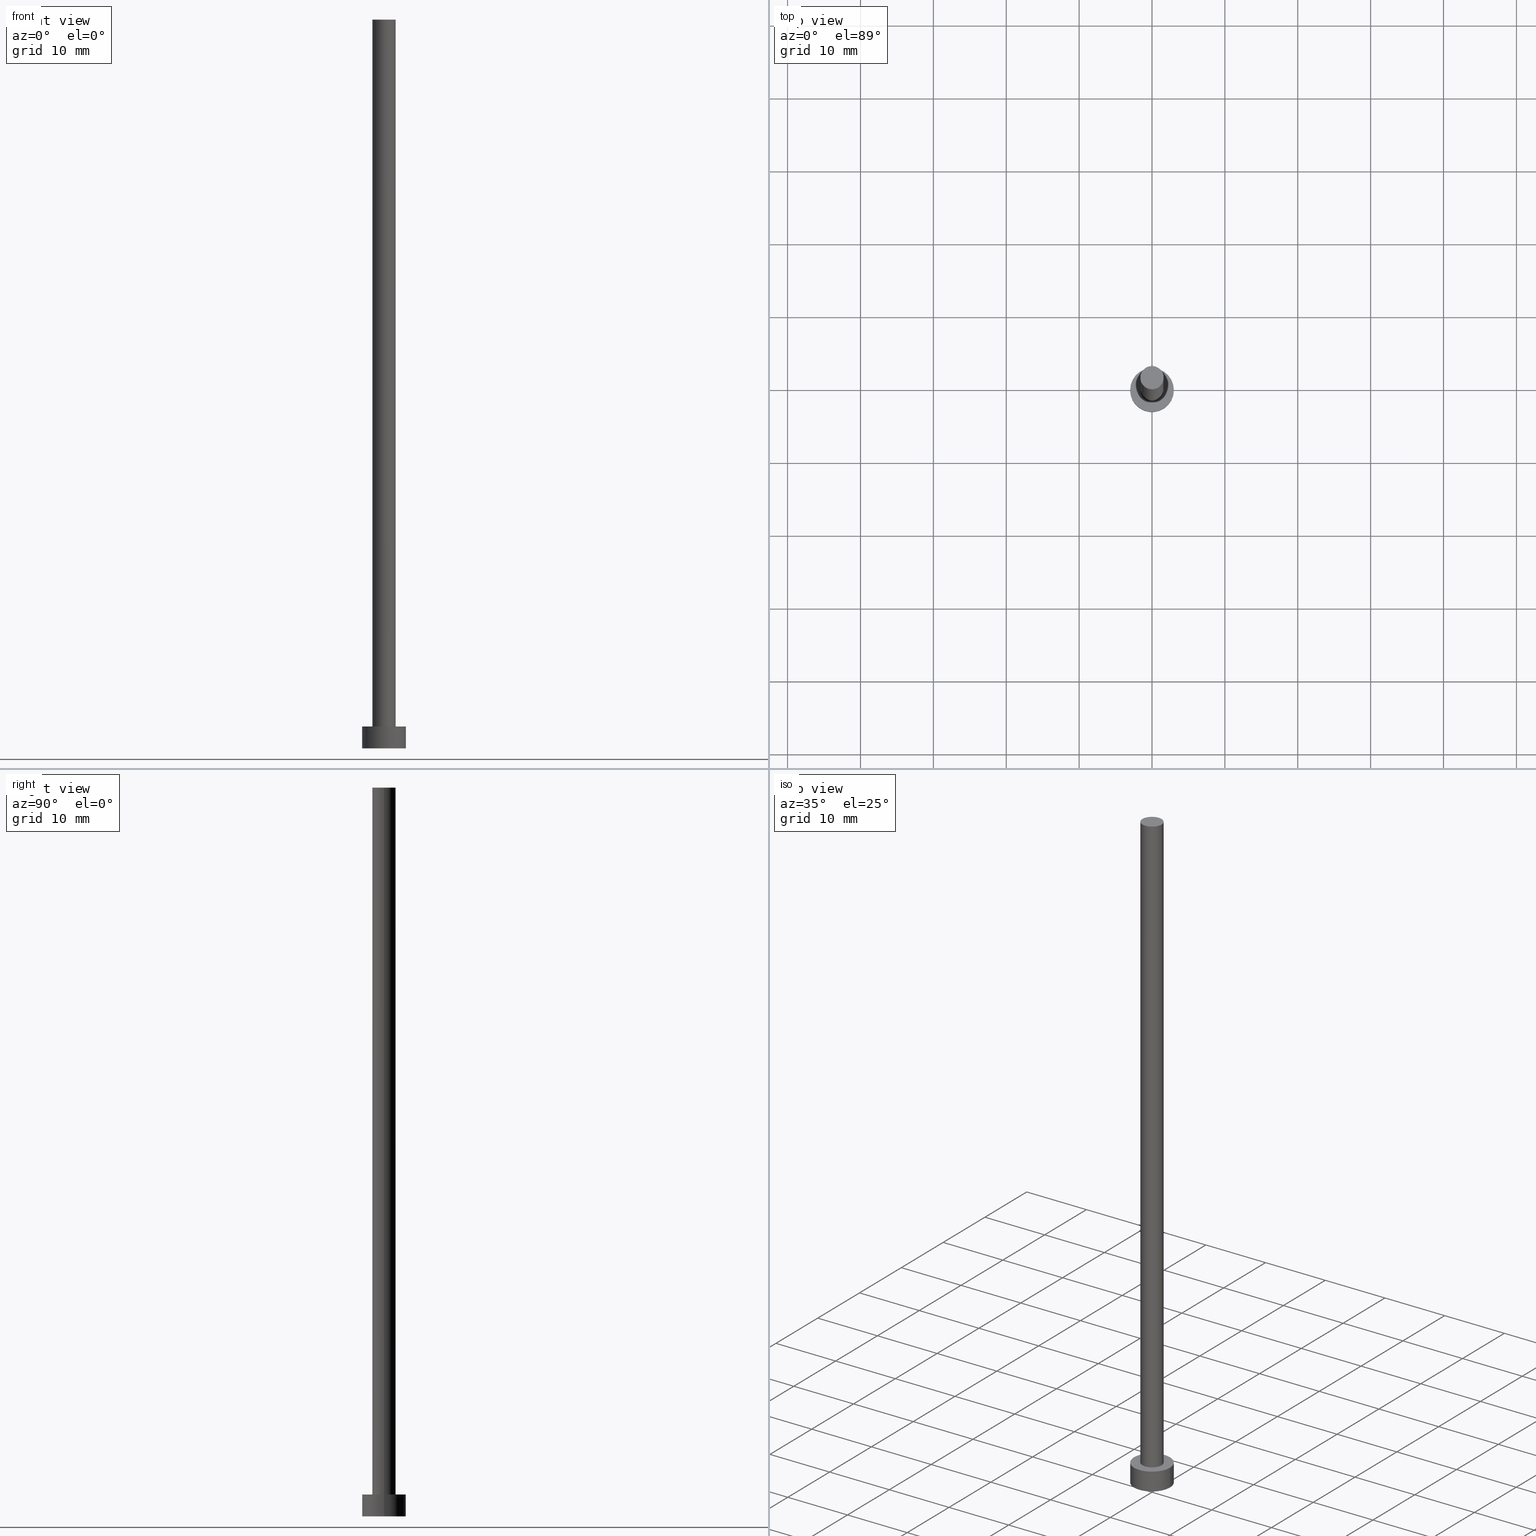
[diagram: canonical four-view strip — front | top / right | iso, engineering-drawing reading convention]
A machine part, canonical four-view strip (front | top / right | iso — engineering-drawing reading convention). The complete STEP part file that produces these views, byte-faithful:
ISO-10303-21;
HEADER;
FILE_DESCRIPTION (( 'STEP AP203' ),
    '1' );
FILE_NAME ('02a2.STEP',
    '2023-02-13T15:36:31',
    ( '' ),
    ( '' ),
    'SwSTEP 2.0',
    'SolidWorks 2019',
    '' );
FILE_SCHEMA (( 'CONFIG_CONTROL_DESIGN' ));
ENDSEC;

DATA;
#1 = EDGE_CURVE ( 'NONE', #93, #252, #37, .T. ) ;
#2 = SHAPE_DEFINITION_REPRESENTATION ( #193, #200 ) ;
#3 = AXIS2_PLACEMENT_3D ( 'NONE', #116, #62, #243 ) ;
#4 = FACE_OUTER_BOUND ( 'NONE', #247, .T. ) ;
#5 = DIRECTION ( 'NONE',  ( 1.000000000000000000, 0.000000000000000000, -0.000000000000000000 ) ) ;
#6 = MANIFOLD_SOLID_BREP ( 'P�idat vysunut�m3', #237 ) ;
#7 = DIRECTION ( 'NONE',  ( 1.000000000000000000, 0.000000000000000000, 0.000000000000000000 ) ) ;
#8 = DIRECTION ( 'NONE',  ( -0.000000000000000000, -0.000000000000000000, -1.000000000000000000 ) ) ;
#9 = PERSON_AND_ORGANIZATION ( #230, #229 ) ;
#10 = CARTESIAN_POINT ( 'NONE',  ( 1.600000000000000089, 1.959434878635764737E-16, 100.0000000000000000 ) ) ;
#11 = ADVANCED_FACE ( 'NONE', ( #60 ), #81, .F. ) ;
#12 = LOCAL_TIME ( 16, 36, 31.00000000000000000, #52 ) ;
#13 = DIRECTION ( 'NONE',  ( 1.000000000000000000, 0.000000000000000000, 0.000000000000000000 ) ) ;
#14 = ORIENTED_EDGE ( 'NONE', *, *, #41, .F. ) ;
#15 = ORIENTED_EDGE ( 'NONE', *, *, #1, .T. ) ;
#16 = CC_DESIGN_DATE_AND_TIME_ASSIGNMENT ( #210, #112, ( #136 ) ) ;
#17 = ADVANCED_FACE ( 'NONE', ( #26 ), #134, .T. ) ;
#18 = PERSON_AND_ORGANIZATION ( #230, #229 ) ;
#19 = AXIS2_PLACEMENT_3D ( 'NONE', #119, #221, #202 ) ;
#20 = VERTEX_POINT ( 'NONE', #118 ) ;
#21 = APPLICATION_CONTEXT ( 'configuration controlled 3d designs of mechanical parts and assemblies' ) ;
#22 = FACE_BOUND ( 'NONE', #91, .T. ) ;
#23 = DIRECTION ( 'NONE',  ( 0.000000000000000000, 0.000000000000000000, 1.000000000000000000 ) ) ;
#24 = VERTEX_POINT ( 'NONE', #218 ) ;
#25 = DIRECTION ( 'NONE',  ( 1.000000000000000000, 0.000000000000000000, 0.000000000000000000 ) ) ;
#26 = FACE_OUTER_BOUND ( 'NONE', #236, .T. ) ;
#27 = CARTESIAN_POINT ( 'NONE',  ( 0.000000000000000000, 0.000000000000000000, 100.0000000000000000 ) ) ;
#28 = DIRECTION ( 'NONE',  ( 1.000000000000000000, 0.000000000000000000, 0.000000000000000000 ) ) ;
#29 = CALENDAR_DATE ( 2023, 13, 2 ) ;
#30 = ORIENTED_EDGE ( 'NONE', *, *, #179, .T. ) ;
#31 = EDGE_CURVE ( 'NONE', #226, #231, #120, .T. ) ;
#32 = APPROVAL_STATUS ( 'not_yet_approved' ) ;
#33 = ORIENTED_EDGE ( 'NONE', *, *, #82, .T. ) ;
#34 = APPROVAL_PERSON_ORGANIZATION ( #9, #103, #92 ) ;
#35 = PERSON_AND_ORGANIZATION ( #230, #229 ) ;
#36 = CC_DESIGN_PERSON_AND_ORGANIZATION_ASSIGNMENT ( #105, #225, ( #216 ) ) ;
#37 = LINE ( 'NONE', #177, #135 ) ;
#38 = CARTESIAN_POINT ( 'NONE',  ( 0.000000000000000000, 0.000000000000000000, 0.000000000000000000 ) ) ;
#39 = CARTESIAN_POINT ( 'NONE',  ( 1.600000000000000089, 1.959434878635764737E-16, 100.0000000000000000 ) ) ;
#40 = PLANE ( 'NONE',  #153 ) ;
#41 = EDGE_CURVE ( 'NONE', #252, #149, #111, .T. ) ;
#42 = ORIENTED_EDGE ( 'NONE', *, *, #248, .T. ) ;
#43 = AXIS2_PLACEMENT_3D ( 'NONE', #154, #84, #7 ) ;
#44 =( LENGTH_UNIT ( ) NAMED_UNIT ( * ) SI_UNIT ( .MILLI., .METRE. ) );
#45 = VECTOR ( 'NONE', #106, 1000.000000000000000 ) ;
#46 = DIRECTION ( 'NONE',  ( 0.000000000000000000, 0.000000000000000000, 1.000000000000000000 ) ) ;
#47 = DATE_AND_TIME ( #29, #239 ) ;
#48 = ORIENTED_EDGE ( 'NONE', *, *, #185, .T. ) ;
#49 = PERSON_AND_ORGANIZATION ( #230, #229 ) ;
#50 = ORIENTED_EDGE ( 'NONE', *, *, #217, .F. ) ;
#51 = APPROVAL_PERSON_ORGANIZATION ( #209, #99, #191 ) ;
#52 = COORDINATED_UNIVERSAL_TIME_OFFSET ( 1, 0, .AHEAD. ) ;
#53 = PERSON_AND_ORGANIZATION_ROLE ( 'design_supplier' ) ;
#54 = ORIENTED_EDGE ( 'NONE', *, *, #82, .F. ) ;
#55 = CC_DESIGN_PERSON_AND_ORGANIZATION_ASSIGNMENT ( #171, #166, ( #242 ) ) ;
#56 = EDGE_LOOP ( 'NONE', ( #146, #96, #15, #71 ) ) ;
#57 = DIRECTION ( 'NONE',  ( 1.000000000000000000, 0.000000000000000000, 0.000000000000000000 ) ) ;
#58 = CC_DESIGN_PERSON_AND_ORGANIZATION_ASSIGNMENT ( #18, #75, ( #136 ) ) ;
#59 = DIRECTION ( 'NONE',  ( 0.000000000000000000, 0.000000000000000000, 1.000000000000000000 ) ) ;
#60 = FACE_OUTER_BOUND ( 'NONE', #68, .T. ) ;
#61 = AXIS2_PLACEMENT_3D ( 'NONE', #38, #100, #5 ) ;
#62 = DIRECTION ( 'NONE',  ( 0.000000000000000000, 0.000000000000000000, 1.000000000000000000 ) ) ;
#63 = AXIS2_PLACEMENT_3D ( 'NONE', #27, #160, #28 ) ;
#64 = CYLINDRICAL_SURFACE ( 'NONE', #19, 3.000000000000000444 ) ;
#65 = CARTESIAN_POINT ( 'NONE',  ( 3.000000000000000444, 3.673940397442060361E-16, 0.000000000000000000 ) ) ;
#66 = AXIS2_PLACEMENT_3D ( 'NONE', #201, #215, #80 ) ;
#67 =( NAMED_UNIT ( * ) SI_UNIT ( $, .STERADIAN. ) SOLID_ANGLE_UNIT ( ) );
#68 = EDGE_LOOP ( 'NONE', ( #108, #228 ) ) ;
#69 = APPLICATION_PROTOCOL_DEFINITION ( 'international standard', 'config_control_design', 1994, #21 ) ;
#70 = ADVANCED_FACE ( 'NONE', ( #22, #115 ), #40, .T. ) ;
#71 = ORIENTED_EDGE ( 'NONE', *, *, #41, .T. ) ;
#72 = CC_DESIGN_SECURITY_CLASSIFICATION ( #136, ( #242 ) ) ;
#73 = APPROVAL_DATE_TIME ( #74, #99 ) ;
#74 = DATE_AND_TIME ( #253, #85 ) ;
#75 = PERSON_AND_ORGANIZATION_ROLE ( 'classification_officer' ) ;
#76 = APPROVAL ( #183, 'NEUR�EN�' ) ;
#77 = DIRECTION ( 'NONE',  ( -0.000000000000000000, -0.000000000000000000, -1.000000000000000000 ) ) ;
#78 = CIRCLE ( 'NONE', #212, 3.000000000000000444 ) ;
#79 = CC_DESIGN_APPROVAL ( #76, ( #199 ) ) ;
#80 = DIRECTION ( 'NONE',  ( -1.000000000000000000, 0.000000000000000000, 0.000000000000000000 ) ) ;
#81 = PLANE ( 'NONE',  #61 ) ;
#82 = EDGE_CURVE ( 'NONE', #149, #252, #113, .T. ) ;
#83 = DIRECTION ( 'NONE',  ( -0.000000000000000000, -0.000000000000000000, -1.000000000000000000 ) ) ;
#84 = DIRECTION ( 'NONE',  ( 0.000000000000000000, 0.000000000000000000, 1.000000000000000000 ) ) ;
#85 = LOCAL_TIME ( 16, 36, 31.00000000000000000, #169 ) ;
#86 = CARTESIAN_POINT ( 'NONE',  ( 0.000000000000000000, 0.000000000000000000, 3.000000000000000000 ) ) ;
#87 =( NAMED_UNIT ( * ) PLANE_ANGLE_UNIT ( ) SI_UNIT ( $, .RADIAN. ) );
#88 = LINE ( 'NONE', #249, #45 ) ;
#89 = DIRECTION ( 'NONE',  ( 0.000000000000000000, 0.000000000000000000, 1.000000000000000000 ) ) ;
#90 = APPROVAL_STATUS ( 'not_yet_approved' ) ;
#91 = EDGE_LOOP ( 'NONE', ( #14, #54 ) ) ;
#92 = APPROVAL_ROLE ( '' ) ;
#93 = VERTEX_POINT ( 'NONE', #240 ) ;
#94 = CIRCLE ( 'NONE', #224, 3.000000000000000444 ) ;
#95 = EDGE_CURVE ( 'NONE', #208, #149, #214, .T. ) ;
#96 = ORIENTED_EDGE ( 'NONE', *, *, #213, .F. ) ;
#97 = DIRECTION ( 'NONE',  ( 1.000000000000000000, 0.000000000000000000, 0.000000000000000000 ) ) ;
#98 = DIRECTION ( 'NONE',  ( 1.000000000000000000, 0.000000000000000000, -0.000000000000000000 ) ) ;
#99 = APPROVAL ( #32, 'NEUR�EN�' ) ;
#100 = DIRECTION ( 'NONE',  ( 0.000000000000000000, 0.000000000000000000, 1.000000000000000000 ) ) ;
#101 = LINE ( 'NONE', #180, #203 ) ;
#102 = DATE_AND_TIME ( #125, #12 ) ;
#103 = APPROVAL ( #90, 'NEUR�EN�' ) ;
#104 = DIRECTION ( 'NONE',  ( -0.000000000000000000, -0.000000000000000000, -1.000000000000000000 ) ) ;
#105 = PERSON_AND_ORGANIZATION ( #230, #229 ) ;
#106 = DIRECTION ( 'NONE',  ( -0.000000000000000000, -0.000000000000000000, -1.000000000000000000 ) ) ;
#107 = PRODUCT_RELATED_PRODUCT_CATEGORY ( 'detail', '', ( #216 ) ) ;
#108 = ORIENTED_EDGE ( 'NONE', *, *, #31, .F. ) ;
#109 = FACE_OUTER_BOUND ( 'NONE', #56, .T. ) ;
#110 = EDGE_LOOP ( 'NONE', ( #254, #152 ) ) ;
#111 = CIRCLE ( 'NONE', #227, 1.600000000000000089 ) ;
#112 = DATE_TIME_ROLE ( 'classification_date' ) ;
#113 = CIRCLE ( 'NONE', #43, 1.600000000000000089 ) ;
#114 =( GEOMETRIC_REPRESENTATION_CONTEXT ( 3 ) GLOBAL_UNCERTAINTY_ASSIGNED_CONTEXT ( ( #222 ) ) GLOBAL_UNIT_ASSIGNED_CONTEXT ( ( #44, #87, #67 ) ) REPRESENTATION_CONTEXT ( 'NONE', 'WORKASPACE' ) );
#115 = FACE_OUTER_BOUND ( 'NONE', #110, .T. ) ;
#116 = CARTESIAN_POINT ( 'NONE',  ( 0.000000000000000000, 0.000000000000000000, 100.0000000000000000 ) ) ;
#117 = CARTESIAN_POINT ( 'NONE',  ( 0.000000000000000000, 0.000000000000000000, 3.000000000000000000 ) ) ;
#118 = CARTESIAN_POINT ( 'NONE',  ( -3.000000000000000444, 0.000000000000000000, 3.000000000000000000 ) ) ;
#119 = CARTESIAN_POINT ( 'NONE',  ( 0.000000000000000000, 0.000000000000000000, 3.000000000000000000 ) ) ;
#120 = CIRCLE ( 'NONE', #151, 3.000000000000000444 ) ;
#121 = PERSON_AND_ORGANIZATION_ROLE ( 'creator' ) ;
#122 = EDGE_CURVE ( 'NONE', #20, #24, #78, .T. ) ;
#123 = APPROVAL_ROLE ( '' ) ;
#124 = CC_DESIGN_APPROVAL ( #103, ( #242 ) ) ;
#125 = CALENDAR_DATE ( 2023, 13, 2 ) ;
#126 = EDGE_LOOP ( 'NONE', ( #144, #233, #173, #194 ) ) ;
#127 = CIRCLE ( 'NONE', #251, 1.600000000000000089 ) ;
#128 = CALENDAR_DATE ( 2023, 13, 2 ) ;
#129 = ADVANCED_FACE ( 'NONE', ( #198 ), #175, .T. ) ;
#130 = SECURITY_CLASSIFICATION_LEVEL ( 'unclassified' ) ;
#131 = ORIENTED_EDGE ( 'NONE', *, *, #1, .F. ) ;
#132 = CARTESIAN_POINT ( 'NONE',  ( 0.000000000000000000, 0.000000000000000000, 3.000000000000000000 ) ) ;
#133 = DIRECTION ( 'NONE',  ( 0.000000000000000000, 0.000000000000000000, 1.000000000000000000 ) ) ;
#134 = CYLINDRICAL_SURFACE ( 'NONE', #205, 3.000000000000000444 ) ;
#135 = VECTOR ( 'NONE', #77, 1000.000000000000000 ) ;
#136 = SECURITY_CLASSIFICATION ( '', '', #130 ) ;
#137 = CARTESIAN_POINT ( 'NONE',  ( 1.600000000000000089, 1.959434878635764737E-16, 3.000000000000000000 ) ) ;
#138 = CYLINDRICAL_SURFACE ( 'NONE', #66, 1.600000000000000089 ) ;
#139 = DIRECTION ( 'NONE',  ( 0.000000000000000000, 0.000000000000000000, 1.000000000000000000 ) ) ;
#140 = AXIS2_PLACEMENT_3D ( 'NONE', #142, #46, #184 ) ;
#141 = CC_DESIGN_PERSON_AND_ORGANIZATION_ASSIGNMENT ( #35, #53, ( #242 ) ) ;
#142 = CARTESIAN_POINT ( 'NONE',  ( 0.000000000000000000, 0.000000000000000000, 0.000000000000000000 ) ) ;
#143 = ORIENTED_EDGE ( 'NONE', *, *, #95, .T. ) ;
#144 = ORIENTED_EDGE ( 'NONE', *, *, #185, .F. ) ;
#145 = CARTESIAN_POINT ( 'NONE',  ( -1.600000000000000089, 0.000000000000000000, 3.000000000000000000 ) ) ;
#146 = ORIENTED_EDGE ( 'NONE', *, *, #95, .F. ) ;
#147 = COORDINATED_UNIVERSAL_TIME_OFFSET ( 1, 0, .AHEAD. ) ;
#148 = CC_DESIGN_DATE_AND_TIME_ASSIGNMENT ( #102, #181, ( #199 ) ) ;
#149 = VERTEX_POINT ( 'NONE', #137 ) ;
#150 = DATE_AND_TIME ( #232, #176 ) ;
#151 = AXIS2_PLACEMENT_3D ( 'NONE', #178, #59, #57 ) ;
#152 = ORIENTED_EDGE ( 'NONE', *, *, #235, .T. ) ;
#153 = AXIS2_PLACEMENT_3D ( 'NONE', #157, #174, #98 ) ;
#154 = CARTESIAN_POINT ( 'NONE',  ( 0.000000000000000000, 0.000000000000000000, 3.000000000000000000 ) ) ;
#155 = CARTESIAN_POINT ( 'NONE',  ( 0.000000000000000000, 0.000000000000000000, 100.0000000000000000 ) ) ;
#156 = DIRECTION ( 'NONE',  ( -0.000000000000000000, -0.000000000000000000, -1.000000000000000000 ) ) ;
#157 = CARTESIAN_POINT ( 'NONE',  ( 0.000000000000000000, 0.000000000000000000, 3.000000000000000000 ) ) ;
#158 = AXIS2_PLACEMENT_3D ( 'NONE', #182, #104, #204 ) ;
#159 = FACE_OUTER_BOUND ( 'NONE', #126, .T. ) ;
#160 = DIRECTION ( 'NONE',  ( 0.000000000000000000, 0.000000000000000000, 1.000000000000000000 ) ) ;
#161 = CARTESIAN_POINT ( 'NONE',  ( -3.000000000000000444, 0.000000000000000000, 0.000000000000000000 ) ) ;
#162 = MECHANICAL_CONTEXT ( 'NONE', #211, 'mechanical' ) ;
#163 = ORIENTED_EDGE ( 'NONE', *, *, #213, .T. ) ;
#164 = DESIGN_CONTEXT ( 'detailed design', #21, 'design' ) ;
#165 = PERSON_AND_ORGANIZATION ( #230, #229 ) ;
#166 = PERSON_AND_ORGANIZATION_ROLE ( 'creator' ) ;
#167 = APPROVAL_PERSON_ORGANIZATION ( #49, #76, #123 ) ;
#168 = ORIENTED_EDGE ( 'NONE', *, *, #179, .F. ) ;
#169 = COORDINATED_UNIVERSAL_TIME_OFFSET ( 1, 0, .AHEAD. ) ;
#170 = ADVANCED_FACE ( 'NONE', ( #4 ), #138, .T. ) ;
#171 = PERSON_AND_ORGANIZATION ( #230, #229 ) ;
#172 = CC_DESIGN_APPROVAL ( #99, ( #136 ) ) ;
#173 = ORIENTED_EDGE ( 'NONE', *, *, #217, .T. ) ;
#174 = DIRECTION ( 'NONE',  ( 0.000000000000000000, 0.000000000000000000, 1.000000000000000000 ) ) ;
#175 = PLANE ( 'NONE',  #3 ) ;
#176 = LOCAL_TIME ( 16, 36, 31.00000000000000000, #188 ) ;
#177 = CARTESIAN_POINT ( 'NONE',  ( -1.600000000000000089, 0.000000000000000000, 100.0000000000000000 ) ) ;
#178 = CARTESIAN_POINT ( 'NONE',  ( 0.000000000000000000, 0.000000000000000000, 0.000000000000000000 ) ) ;
#179 = EDGE_CURVE ( 'NONE', #208, #93, #127, .T. ) ;
#180 = CARTESIAN_POINT ( 'NONE',  ( 3.000000000000000444, 3.673940397442060361E-16, 3.000000000000000000 ) ) ;
#181 = DATE_TIME_ROLE ( 'creation_date' ) ;
#182 = CARTESIAN_POINT ( 'NONE',  ( 0.000000000000000000, 0.000000000000000000, 100.0000000000000000 ) ) ;
#183 = APPROVAL_STATUS ( 'not_yet_approved' ) ;
#184 = DIRECTION ( 'NONE',  ( 1.000000000000000000, 0.000000000000000000, 0.000000000000000000 ) ) ;
#185 = EDGE_CURVE ( 'NONE', #24, #231, #101, .T. ) ;
#186 = VECTOR ( 'NONE', #156, 1000.000000000000000 ) ;
#187 = ORIENTED_EDGE ( 'NONE', *, *, #235, .F. ) ;
#188 = COORDINATED_UNIVERSAL_TIME_OFFSET ( 1, 0, .AHEAD. ) ;
#189 = AXIS2_PLACEMENT_3D ( 'NONE', #86, #89, #13 ) ;
#190 = ADVANCED_FACE ( 'NONE', ( #159 ), #64, .T. ) ;
#191 = APPROVAL_ROLE ( '' ) ;
#192 = CIRCLE ( 'NONE', #189, 3.000000000000000444 ) ;
#193 = PRODUCT_DEFINITION_SHAPE ( 'NONE', 'NONE',  #199 ) ;
#194 = ORIENTED_EDGE ( 'NONE', *, *, #31, .T. ) ;
#195 = ADVANCED_FACE ( 'NONE', ( #109 ), #244, .T. ) ;
#196 = DIRECTION ( 'NONE',  ( 0.000000000000000000, 0.000000000000000000, 1.000000000000000000 ) ) ;
#197 = EDGE_LOOP ( 'NONE', ( #163, #30 ) ) ;
#198 = FACE_OUTER_BOUND ( 'NONE', #197, .T. ) ;
#199 = PRODUCT_DEFINITION ( 'NEZN�M�', '', #242, #164 ) ;
#200 = ADVANCED_BREP_SHAPE_REPRESENTATION ( '02a2', ( #6, #140 ), #114 ) ;
#201 = CARTESIAN_POINT ( 'NONE',  ( 0.000000000000000000, 0.000000000000000000, 100.0000000000000000 ) ) ;
#202 = DIRECTION ( 'NONE',  ( -1.000000000000000000, 0.000000000000000000, 0.000000000000000000 ) ) ;
#203 = VECTOR ( 'NONE', #8, 1000.000000000000000 ) ;
#204 = DIRECTION ( 'NONE',  ( -1.000000000000000000, 0.000000000000000000, 0.000000000000000000 ) ) ;
#205 = AXIS2_PLACEMENT_3D ( 'NONE', #220, #83, #238 ) ;
#206 = COORDINATED_UNIVERSAL_TIME_OFFSET ( 1, 0, .AHEAD. ) ;
#207 = APPROVAL_DATE_TIME ( #47, #76 ) ;
#208 = VERTEX_POINT ( 'NONE', #10 ) ;
#209 = PERSON_AND_ORGANIZATION ( #230, #229 ) ;
#210 = DATE_AND_TIME ( #128, #219 ) ;
#211 = APPLICATION_CONTEXT ( 'configuration controlled 3d designs of mechanical parts and assemblies' ) ;
#212 = AXIS2_PLACEMENT_3D ( 'NONE', #132, #196, #241 ) ;
#213 = EDGE_CURVE ( 'NONE', #93, #208, #234, .T. ) ;
#214 = LINE ( 'NONE', #39, #186 ) ;
#215 = DIRECTION ( 'NONE',  ( -0.000000000000000000, -0.000000000000000000, -1.000000000000000000 ) ) ;
#216 = PRODUCT ( '02a2', '02a2', '', ( #162 ) ) ;
#217 = EDGE_CURVE ( 'NONE', #20, #226, #88, .T. ) ;
#218 = CARTESIAN_POINT ( 'NONE',  ( 3.000000000000000444, 3.673940397442060361E-16, 3.000000000000000000 ) ) ;
#219 = LOCAL_TIME ( 16, 36, 31.00000000000000000, #147 ) ;
#220 = CARTESIAN_POINT ( 'NONE',  ( 0.000000000000000000, 0.000000000000000000, 3.000000000000000000 ) ) ;
#221 = DIRECTION ( 'NONE',  ( -0.000000000000000000, -0.000000000000000000, -1.000000000000000000 ) ) ;
#222 = UNCERTAINTY_MEASURE_WITH_UNIT (LENGTH_MEASURE( 1.000000000000000082E-05 ), #44, 'distance_accuracy_value', 'NONE');
#223 = DIRECTION ( 'NONE',  ( 1.000000000000000000, 0.000000000000000000, 0.000000000000000000 ) ) ;
#224 = AXIS2_PLACEMENT_3D ( 'NONE', #246, #139, #223 ) ;
#225 = PERSON_AND_ORGANIZATION_ROLE ( 'design_owner' ) ;
#226 = VERTEX_POINT ( 'NONE', #161 ) ;
#227 = AXIS2_PLACEMENT_3D ( 'NONE', #117, #23, #97 ) ;
#228 = ORIENTED_EDGE ( 'NONE', *, *, #248, .F. ) ;
#229 = ORGANIZATION ( 'NEUR�EN�', 'NEUR�EN�', '' ) ;
#230 = PERSON ( 'NEUR�EN�', 'NEUR�EN�', 'NEUR�EN�', ('NEUR�EN�'), ('NEUR�EN�'), ('NEUR�EN�') ) ;
#231 = VERTEX_POINT ( 'NONE', #65 ) ;
#232 = CALENDAR_DATE ( 2023, 13, 2 ) ;
#233 = ORIENTED_EDGE ( 'NONE', *, *, #122, .F. ) ;
#234 = CIRCLE ( 'NONE', #63, 1.600000000000000089 ) ;
#235 = EDGE_CURVE ( 'NONE', #24, #20, #192, .T. ) ;
#236 = EDGE_LOOP ( 'NONE', ( #187, #48, #42, #50 ) ) ;
#237 = CLOSED_SHELL ( 'NONE', ( #170, #17, #190, #70, #11, #195, #129 ) ) ;
#238 = DIRECTION ( 'NONE',  ( -1.000000000000000000, 0.000000000000000000, 0.000000000000000000 ) ) ;
#239 = LOCAL_TIME ( 16, 36, 31.00000000000000000, #206 ) ;
#240 = CARTESIAN_POINT ( 'NONE',  ( -1.600000000000000089, 0.000000000000000000, 100.0000000000000000 ) ) ;
#241 = DIRECTION ( 'NONE',  ( 1.000000000000000000, 0.000000000000000000, 0.000000000000000000 ) ) ;
#242 = PRODUCT_DEFINITION_FORMATION_WITH_SPECIFIED_SOURCE ( 'LIBOVOLN�', '', #216, .NOT_KNOWN. ) ;
#243 = DIRECTION ( 'NONE',  ( 1.000000000000000000, 0.000000000000000000, -0.000000000000000000 ) ) ;
#244 = CYLINDRICAL_SURFACE ( 'NONE', #158, 1.600000000000000089 ) ;
#245 = CC_DESIGN_PERSON_AND_ORGANIZATION_ASSIGNMENT ( #165, #121, ( #199 ) ) ;
#246 = CARTESIAN_POINT ( 'NONE',  ( 0.000000000000000000, 0.000000000000000000, 0.000000000000000000 ) ) ;
#247 = EDGE_LOOP ( 'NONE', ( #168, #143, #33, #131 ) ) ;
#248 = EDGE_CURVE ( 'NONE', #231, #226, #94, .T. ) ;
#249 = CARTESIAN_POINT ( 'NONE',  ( -3.000000000000000444, 0.000000000000000000, 3.000000000000000000 ) ) ;
#250 = APPLICATION_PROTOCOL_DEFINITION ( 'international standard', 'config_control_design', 1994, #211 ) ;
#251 = AXIS2_PLACEMENT_3D ( 'NONE', #155, #133, #25 ) ;
#252 = VERTEX_POINT ( 'NONE', #145 ) ;
#253 = CALENDAR_DATE ( 2023, 13, 2 ) ;
#254 = ORIENTED_EDGE ( 'NONE', *, *, #122, .T. ) ;
#255 = APPROVAL_DATE_TIME ( #150, #103 ) ;
ENDSEC;
END-ISO-10303-21;
